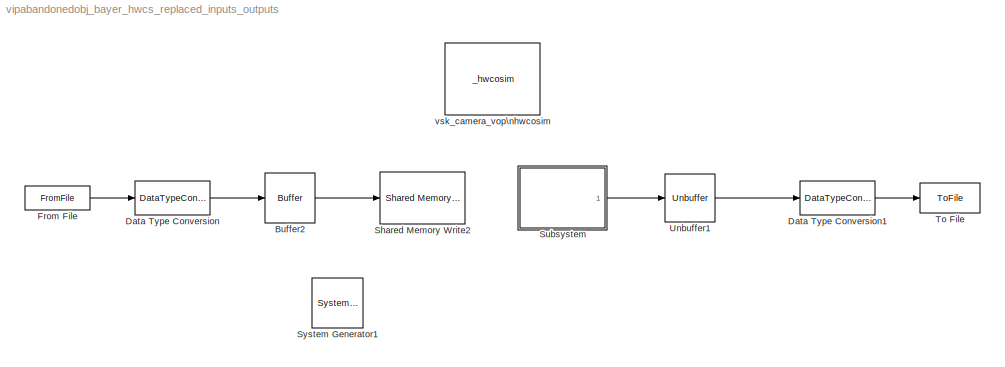
MODEL vipabandonedobj_bayer_hwcs_replaced_inputs_outputs
KIND model
CONFIG StartFcn = tic
CONFIG StopFcn = toc
BLOCK [Reference]  System Generator1  REF=xbsIndex_r4/ System Generator
  AttributesFormatString = System\\nGenerator
  FunctionWithSeparateData = off
  Ports = []
  RTWMemSecDataConstants = Inherit from model
  RTWMemSecDataInternal = Inherit from model
  RTWMemSecDataParameters = Inherit from model
  RTWMemSecFuncExecute = Inherit from model
  RTWMemSecFuncInitTerm = Inherit from model
  SID = 1
  ShowPortLabels = FromPortIcon
  SourceBlock = xbsIndex_r4/ System Generator
  SourceType = Xilinx System Generator Block
  SystemSampleTime = -1
  Tag = genX
  UserData = DataTag0
  UserDataPersistent = on
  block_type = sysgen
  block_version = 9.2.01
  core_generation = According to Block Masks
  dbl_ovrd = According to Block Masks
  deprecated_control = off
  directory = ./netlist
  eval_field = 0
  has_advanced_control = 0
  incr_netlist = off
  infoedit = System Generator
  package = ff668
  part = xc4vsx35
  run_coregen = off
  sg_icon_stat = 51,50,-1,-1,red,beige,0,07734
  sg_mask_display = fprintf('','COMMENT: begin icon graphics');\npatch([0 51 51 0 ],[0 0 50 50 ],[0.93 0.92 0.86]);\npatch([12 4 16 4 12 25 29 33 47 36 25 17 29 17 25 36 47 33 29 25 12 ],[5 13 25 37 45 45 41 45 45 34 45 37 25 13 5 16 5 5 9 5 5 ],[0.6 0.2 0.25]);\nplot([0 0 51 51 0 ],[0 50 50 0 0 ]);\nfprintf('','COMMENT: end icon graphics');\nfprintf('','COMMENT: begin icon text');\nfprintf('','COMMENT: end icon text...<+5ch>
  sggui_pos = -1,-1,-1,-1
  simulink_period = 2880
  speed = -10
  synthesis_tool = XST
  sysclk_period = 10
  testbench = off
  trim_vbits = Everywhere in SubSystem
  xilinxfamily = virtex4
BLOCK [Reference] Buffer2  REF=dspbuff3/Buffer
  N = 2880
  Ports = [1, 1]
  SID = 2
  SourceBlock = dspbuff3/Buffer
  SourceProductBaseCode = DS
  SourceProductName = DSP System Toolbox
  SourceType = Buffer
  V = 0
  ic = 0
BLOCK [DataTypeConversion] Data Type Conversion
  OutDataTypeStr = uint16
  RndMeth = Floor
  SID = 3
  SaturateOnIntegerOverflow = off
BLOCK [DataTypeConversion] Data Type Conversion1
  OutDataTypeStr = double
  RndMeth = Floor
  SID = 4
  SaturateOnIntegerOverflow = off
BLOCK [FromFile] From File
  FileName = sources.mat
  SID = 5
  SampleTime = 1
BLOCK [Reference] Shared Memory Write2  REF=xbsIndex_r4/Shared Memory Write
  AttributesFormatString = << %<shmem_name> >>
  Ports = [1]
  Priority = 2
  SID = 6
  SourceBlock = xbsIndex_r4/Shared Memory Write
  SourceType = Xilinx Shared Memory Write Block
  block_type = toshmem
  block_version = VER_STRING_GOES_HERE
  has_advanced_control = 0
  infoedit = Writes scalar, vector, matrix, or frame data into a shared memory.
  sg_icon_stat = 85,52,0,0,white,blue,0,0
  sg_mask_display = fprintf('','COMMENT: begin icon graphics ');\npatch([0 85 85 0 ],[0 0 52 52 ],[0.77 0.82 0.91]);\npatch([29 20 32 20 29 43 47 51 66 54 43 35 47 35 43 54 66 51 47 43 29 ],[6 15 27 39 48 48 44 48 48 36 47 39 27 15 7 18 6 6 10 6 6 ],[0.98 0.96 0.92]);\nplot([0 0 85 85 0 ],[0 52 52 0 0 ]);\nfprintf('','COMMENT: end icon graphics');\npatch([0 iWidth iWidth 0],[0 0 iHeight iHeight] , bg);\npatch(logoX,l...<+155ch>
  sggui_pos = 425,86,336,140
  shmem_depth = 4095
  shmem_name = 'data_in'
  shmem_type = FIFO
  shmem_word = 16
  skip_check = on
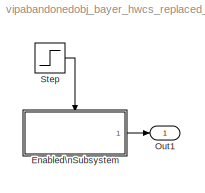
BLOCK [SubSystem] Subsystem
  Ports = [0, 1]
  RequestExecContextInheritance = off
  SID = 7
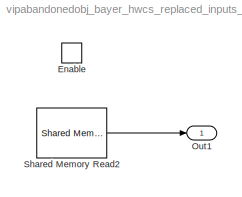
BLOCK [SubSystem] Subsystem/Enabled\nSubsystem
  Ports = [0, 1, 1]
  RequestExecContextInheritance = off
  SID = 8
  TreatAsAtomicUnit = on
BLOCK [EnablePort] Subsystem/Enabled\nSubsystem/Enable
  Ports = []
  SID = 9
BLOCK [Outport] Subsystem/Enabled\nSubsystem/Out1
  IconDisplay = Port number
  SID = 11
BLOCK [Reference] Subsystem/Enabled\nSubsystem/Shared Memory Read2  REF=xbsIndex_r4/Shared Memory Read
  AttributesFormatString = << %<shmem_name> >>
  Ports = [0, 1]
  Priority = 20
  SID = 10
  SourceBlock = xbsIndex_r4/Shared Memory Read
  SourceType = Xilinx Shared Memory Read Block
  block_type = fromshmem
  block_version = VER_STRING_GOES_HERE
  dataType = uint32
  has_advanced_control = 0
  infoedit = Reads sequentially from a shared memory block.
  isFrame = on
  outDims = [2880 1]
  sample_time = 2880
  sg_icon_stat = 70,50,0,0,white,blue,0,0
  sg_mask_display = fprintf('','COMMENT: begin icon graphics ');\npatch([0 70 70 0 ],[0 0 50 50 ],[0.77 0.82 0.91]);\npatch([21 13 25 13 21 34 38 42 56 45 34 26 38 26 34 45 56 42 38 34 21 ],[5 13 25 37 45 45 41 45 45 34 45 37 25 13 5 16 5 5 9 5 5 ],[0.98 0.96 0.92]);\nplot([0 0 70 70 0 ],[0 50 50 0 0 ]);\nfprintf('','COMMENT: end icon graphics');\npatch([0 iWidth iWidth 0],[0 0 iHeight iHeight] , bg);\npatch(logoX,lo...<+155ch>
  sggui_pos = 551,260,356,196
  shmem_depth = 4095
  shmem_name = 'data_out'
  shmem_type = FIFO
  shmem_word = 32
BLOCK [Outport] Subsystem/Out1
  IconDisplay = Port number
  SID = 13
BLOCK [Step] Subsystem/Step
  SID = 12
  SampleTime = 0
BLOCK [ToFile] To File
  Filename = results.mat
  Ports = [1]
  SID = 14
BLOCK [Reference] Unbuffer1  REF=dspbuff3/Unbuffer
  Ports = [1, 1]
  SID = 15
  SourceBlock = dspbuff3/Unbuffer
  SourceProductBaseCode = DS
  SourceProductName = DSP System Toolbox
  SourceType = Unbuffer
  ic = 0
BLOCK [Reference] vsk_camera_vop\nhwcosim  REF=S3ADSP_SK_PPEth_RuntimeCosim/_hwcosim
  Ports = []
  SID = 16
  Scheme = Cosim
  SourceBlock = S3ADSP_SK_PPEth_RuntimeCosim/_hwcosim
  SourceType = Xilinx Point-to-point Ethernet Hardware Co-simulation Block
  bitfileName = <path>
  block_type = ppethernet_cosim
  block_version = 9.2.01
  bscanPos = 1
  cable = Xilinx Parallel Cable IV
  clkSrc = Free Running
  configTimeout = 3000
  cosim_xtable = {'ethernetCosim'=>{'bscanPos'=>1,'maxFrameSize'=>2040,'target'=>'S3ADSP_SK','type'=>'ppethernet'}}
  design_xtable = {\n  'clkWrapper' => 'vsk_camera_vop_cw',\n  'clocksGcd' => 1,\n  'device' => 'xc3sd1800a-4fg676',\n  'ports' => {},\n  'shared_memories' => {\n    'data_in' => {\n      'bank' => 0,\n      'block_config' => 'sysgen_blockset:fromfifo_config',\n      'data_addr' => 0,\n      'depth' => 4095,\n      'full_empty_index' => 0,\n      'percent_full_index' => 1,\n      'width' => 16,\n    },\n    'data_o...<+240ch>
  ethernetInterface = Please select an Ethernet interface
  ethernetInterfaceID = \\Device\\NPF_{A8C0F68A-51F8-4EB4-BBA0-E2E8303F83B4}
  fpgaEthernetAddr = 00:0a:35:11:22:33
  hasCombinationalPath = on
  hasProc = 0
  has_advanced_control = 0
  memxtable = {'treeview'=>[{'icon'=>'fifo','label'=>'&lt;&lt;&apos;data_in&apos;&gt;&gt;','param'=>['Depth: 4095','Number of Bits: 16','Type: From FIFO'],'state'=>0.00000000000000000},{'icon'=>'fifo','label'=>'&lt;&lt;&apos;data_out&apos;&gt;&gt;','param'=>['Depth: 4095','Number of Bits: 32','Type: To FIFO'],'state'=>0.00000000000000000}]}
  prgClkFreq = 50
  sg_icon_stat = 95,72,0,0,white,gray,0,75ccfc7e
  sg_list_contents = {'table'=>{'ethernetInterface'=>'popup(Please select an Ethernet interface|Broadcom NetXtreme Gigabit Ethernet Driver (Microsoft\\'s Packet Scheduler)  (00:14:22:fb:42:88))','userSelections'=>{'ethernetInterface'=>'Please select an Ethernet interface'}}}
  sg_mask_display = fprintf('','COMMENT: begin icon graphics');\npatch([0 95 95 0 ],[0 0 72 72 ],[0.88 0.88 0.88]);\npatch([28 16 33 16 28 47 52 57 77 61 46 35 52 35 46 61 77 57 52 47 28 ],[8 20 37 54 66 66 61 66 66 50 65 54 37 20 9 24 8 8 13 8 8 ],[0.98 0.96 0.92]);\nplot([0 0 95 95 0 ],[0 72 72 0 0 ]);\nfprintf('','COMMENT: end icon graphics');\nfprintf('','COMMENT: begin icon text');\n\nfprintf('','COMMENT: end ic...<+65ch>
  sggui_pos = 20,20,1011,421
  speed = 5 MHz
  treeview = <html><head><meta name=\"qrichtext\" content=\"1\" /><style type=\"text/css\">\np, li { white-space: pre-wrap; }\n</style></head><body style=\" font-family:'MS Shell Dlg 2'; font-size:8.25pt; font-weight:400; font-style:normal;\" bgcolor=\"#ffffff\">\n<p style=\" margin-top:0px; margin-bottom:0px; margin-left:0px; margin-right:0px; -qt-block-indent:0; text-indent:0px; font-size:8pt;\"><img src=\"C...<+381ch>
  useWaitBox = 1
LINE Buffer2:1 -> Shared Memory Write2:1
LINE Data Type Conversion1:1 -> To File:1
LINE Data Type Conversion:1 -> Buffer2:1
LINE From File:1 -> Data Type Conversion:1
LINE Subsystem/Enabled\nSubsystem/Shared Memory Read2:1 -> Subsystem/Enabled\nSubsystem/Out1:1
LINE Subsystem/Enabled\nSubsystem:1 -> Subsystem/Out1:1
LINE Subsystem/Step:1 -> Subsystem/Enabled\nSubsystem:enable
LINE Subsystem:1 -> Unbuffer1:1
LINE Unbuffer1:1 -> Data Type Conversion1:1
note: 1 file-system path scrubbed to <path> (not preserved elsewhere — flat text is the only slx artifact)
